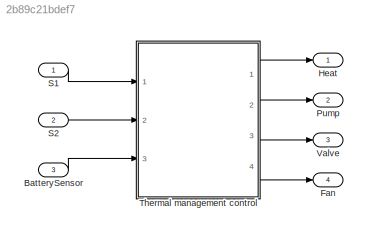
MODEL slx_2b89c21bdef7
KIND model
CONFIG AbsTol = auto
CONFIG EnableMultiTasking = off
CONFIG FixedStep = auto
CONFIG MaxStep = auto
CONFIG MinStep = auto
CONFIG RelTol = 1e-3
CONFIG SampleTimeConstraint = Unconstrained
CONFIG SolverName = VariableStepAuto
CONFIG StartTime = 0.0
CONFIG StopTime = 10.0
BLOCK [Inport] BatterySensor
  Port = 3
BLOCK [Outport] Fan
  Port = 4
BLOCK [Outport] Heat
BLOCK [Outport] Pump
  Port = 2
BLOCK [Inport] S1
BLOCK [Inport] S2
  Port = 2
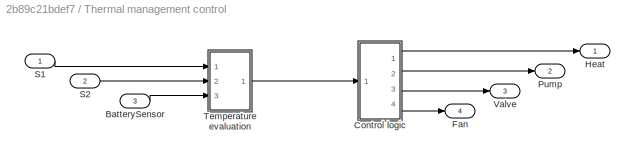
BLOCK [SubSystem] Thermal management control
  Ports = [3, 4]
  RequestExecContextInheritance = off
BLOCK [Inport] Thermal management control/BatterySensor
  Port = 3
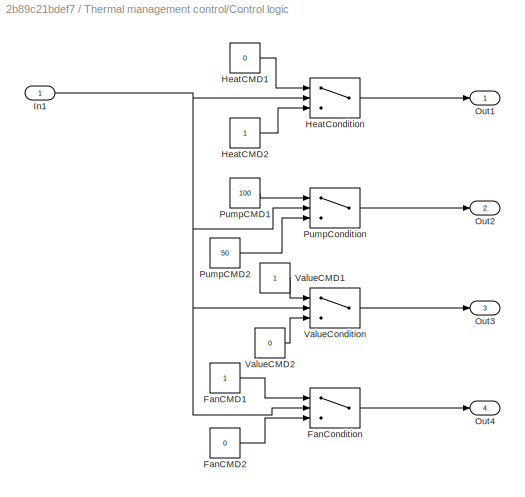
BLOCK [SubSystem] Thermal management control/Control logic
  Ports = [1, 4]
  RequestExecContextInheritance = off
BLOCK [Constant] Thermal management control/Control logic/FanCMD1
BLOCK [Constant] Thermal management control/Control logic/FanCMD2
  Value = 0
BLOCK [Switch] Thermal management control/Control logic/FanCondition
  Criteria = u2 > Threshold
  InputSameDT = off
  SaturateOnIntegerOverflow = off
  Threshold = 27
BLOCK [Constant] Thermal management control/Control logic/HeatCMD1
  Value = 0
BLOCK [Constant] Thermal management control/Control logic/HeatCMD2
BLOCK [Switch] Thermal management control/Control logic/HeatCondition
  Criteria = u2 > Threshold
  InputSameDT = off
  SaturateOnIntegerOverflow = off
  Threshold = 23
BLOCK [Inport] Thermal management control/Control logic/In1
BLOCK [Outport] Thermal management control/Control logic/Out1
BLOCK [Outport] Thermal management control/Control logic/Out2
  Port = 2
BLOCK [Outport] Thermal management control/Control logic/Out3
  Port = 3
BLOCK [Outport] Thermal management control/Control logic/Out4
  Port = 4
BLOCK [Constant] Thermal management control/Control logic/PumpCMD1
  Value = 100
BLOCK [Constant] Thermal management control/Control logic/PumpCMD2
  Value = 50
BLOCK [Switch] Thermal management control/Control logic/PumpCondition
  Criteria = u2 > Threshold
  InputSameDT = off
  SaturateOnIntegerOverflow = off
  Threshold = 27
BLOCK [Constant] Thermal management control/Control logic/ValueCMD1
BLOCK [Constant] Thermal management control/Control logic/ValueCMD2
  Value = 0
BLOCK [Switch] Thermal management control/Control logic/ValueCondition
  Criteria = u2 > Threshold
  InputSameDT = off
  SaturateOnIntegerOverflow = off
  Threshold = 27
BLOCK [Outport] Thermal management control/Fan
  Port = 4
BLOCK [Outport] Thermal management control/Heat
BLOCK [Outport] Thermal management control/Pump
  Port = 2
BLOCK [Inport] Thermal management control/S1
BLOCK [Inport] Thermal management control/S2
  Port = 2
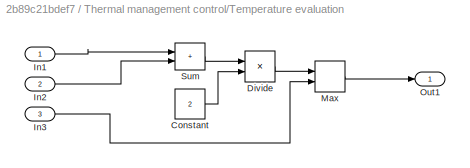
BLOCK [SubSystem] Thermal management control/Temperature evaluation
  Ports = [3, 1]
  RequestExecContextInheritance = off
BLOCK [Constant] Thermal management control/Temperature evaluation/Constant
  Value = 2
BLOCK [Product] Thermal management control/Temperature evaluation/Divide
  Inputs = */
  Ports = [2, 1]
BLOCK [Inport] Thermal management control/Temperature evaluation/In1
BLOCK [Inport] Thermal management control/Temperature evaluation/In2
  Port = 2
BLOCK [Inport] Thermal management control/Temperature evaluation/In3
  Port = 3
BLOCK [MinMax] Thermal management control/Temperature evaluation/Max
  Function = max
  Inputs = 2
  Ports = [2, 1]
BLOCK [Outport] Thermal management control/Temperature evaluation/Out1
BLOCK [Sum] Thermal management control/Temperature evaluation/Sum
  IconShape = rectangular
  Ports = [2, 1]
BLOCK [Outport] Thermal management control/Valve
  Port = 3
BLOCK [Outport] Valve
  Port = 3
LINE BatterySensor:1 -> Thermal management control:3
LINE S1:1 -> Thermal management control:1
LINE S2:1 -> Thermal management control:2
LINE Thermal management control/BatterySensor:1 -> Thermal management control/Temperature evaluation:3
LINE Thermal management control/Control logic/FanCMD1:1 -> Thermal management control/Control logic/FanCondition:1
LINE Thermal management control/Control logic/FanCMD2:1 -> Thermal management control/Control logic/FanCondition:3
LINE Thermal management control/Control logic/FanCondition:1 -> Thermal management control/Control logic/Out4:1
LINE Thermal management control/Control logic/HeatCMD1:1 -> Thermal management control/Control logic/HeatCondition:1
LINE Thermal management control/Control logic/HeatCMD2:1 -> Thermal management control/Control logic/HeatCondition:3
LINE Thermal management control/Control logic/HeatCondition:1 -> Thermal management control/Control logic/Out1:1
NET Thermal management control/Control logic/In1:1 -> Thermal management control/Control logic/FanCondition:2, Thermal management control/Control logic/HeatCondition:2, Thermal management control/Control logic/PumpCondition:2, Thermal management control/Control logic/ValueCondition:2
LINE Thermal management control/Control logic/PumpCMD1:1 -> Thermal management control/Control logic/PumpCondition:1
LINE Thermal management control/Control logic/PumpCMD2:1 -> Thermal management control/Control logic/PumpCondition:3
LINE Thermal management control/Control logic/PumpCondition:1 -> Thermal management control/Control logic/Out2:1
LINE Thermal management control/Control logic/ValueCMD1:1 -> Thermal management control/Control logic/ValueCondition:1
LINE Thermal management control/Control logic/ValueCMD2:1 -> Thermal management control/Control logic/ValueCondition:3
LINE Thermal management control/Control logic/ValueCondition:1 -> Thermal management control/Control logic/Out3:1
LINE Thermal management control/Control logic:1 -> Thermal management control/Heat:1
LINE Thermal management control/Control logic:2 -> Thermal management control/Pump:1
LINE Thermal management control/Control logic:3 -> Thermal management control/Valve:1
LINE Thermal management control/Control logic:4 -> Thermal management control/Fan:1
LINE Thermal management control/S1:1 -> Thermal management control/Temperature evaluation:1
LINE Thermal management control/S2:1 -> Thermal management control/Temperature evaluation:2
LINE Thermal management control/Temperature evaluation/Constant:1 -> Thermal management control/Temperature evaluation/Divide:2
LINE Thermal management control/Temperature evaluation/Divide:1 -> Thermal management control/Temperature evaluation/Max:1
LINE Thermal management control/Temperature evaluation/In1:1 -> Thermal management control/Temperature evaluation/Sum:1
LINE Thermal management control/Temperature evaluation/In2:1 -> Thermal management control/Temperature evaluation/Sum:2
LINE Thermal management control/Temperature evaluation/In3:1 -> Thermal management control/Temperature evaluation/Max:2
LINE Thermal management control/Temperature evaluation/Max:1 -> Thermal management control/Temperature evaluation/Out1:1
LINE Thermal management control/Temperature evaluation/Sum:1 -> Thermal management control/Temperature evaluation/Divide:1
LINE Thermal management control/Temperature evaluation:1 -> Thermal management control/Control logic:1
LINE Thermal management control:1 -> Heat:1
LINE Thermal management control:2 -> Pump:1
LINE Thermal management control:3 -> Valve:1
LINE Thermal management control:4 -> Fan:1
note: NET lines group one-source signal fan-out (src -> all destinations, sorted); 1:1 wires keep LINE
